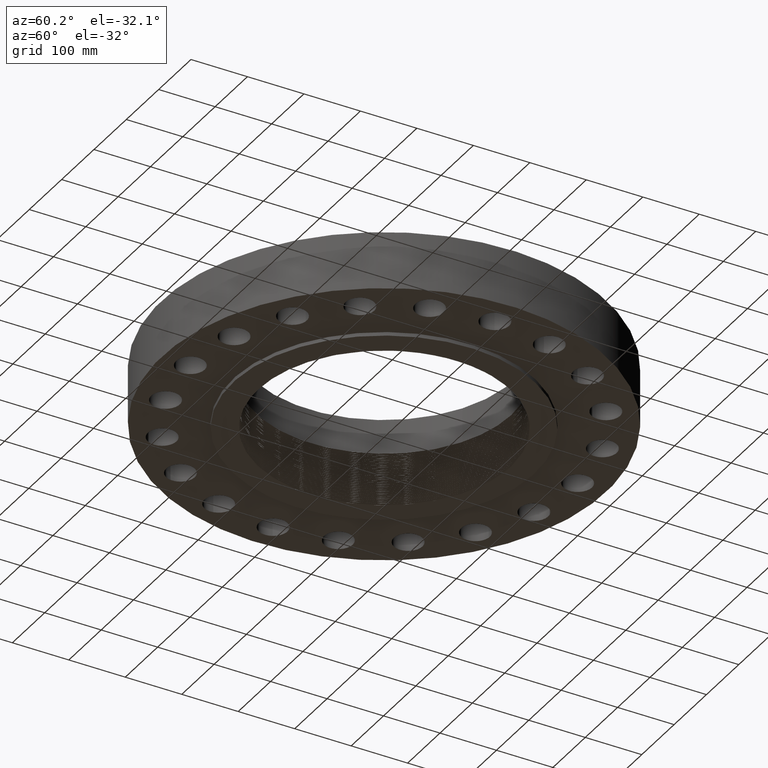
[diagram: clean part render]
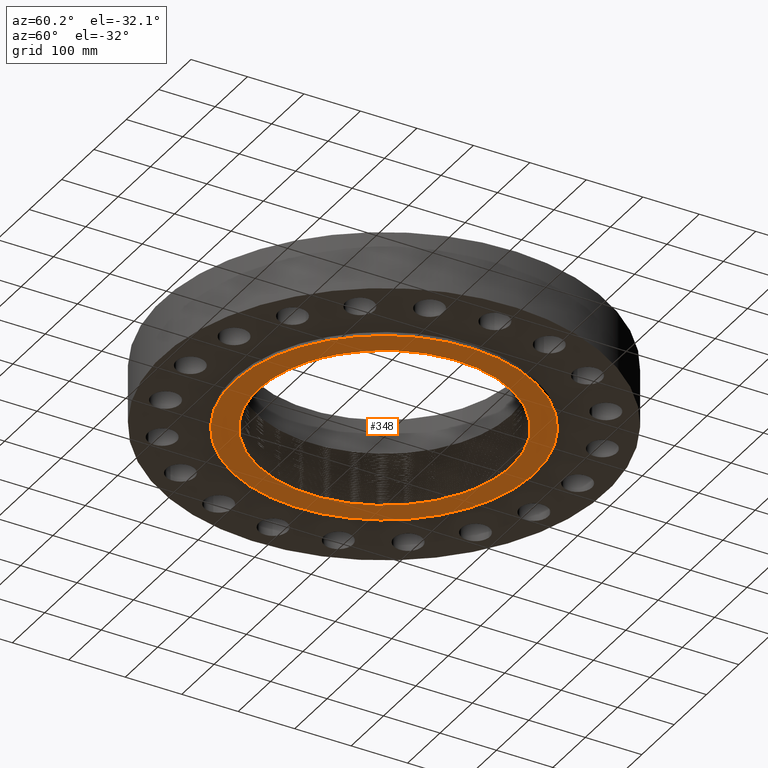
[diagram: same view with one face highlighted and labeled with its STEP entity id]
A machine part, auxiliary view. The second image highlights one B-rep face of the part: STEP entity #348.
In plain terms, the highlighted planar face has unit normal (0, 0, -1).
Its self-contained STEP definition (entity closure, byte-faithful):
#195=AXIS2_PLACEMENT_3D('Plane Axis2P3D',#192,#193,#194) ;
#199=AXIS2_PLACEMENT_3D('Circle Axis2P3D',#197,#198,$) ;
#208=AXIS2_PLACEMENT_3D('Circle Axis2P3D',#206,#207,$) ;
#336=AXIS2_PLACEMENT_3D('Circle Axis2P3D',#334,#335,$) ;
#192=CARTESIAN_POINT('Axis2P3D Location',(0.,0.,-0.250000000001)) ;
#197=CARTESIAN_POINT('Axis2P3D Location',(0.,0.,-0.250000000001)) ;
#201=CARTESIAN_POINT('Vertex',(5.03396815536,9.21461689989,-0.250000000001)) ;
#203=CARTESIAN_POINT('Vertex',(-5.03396815536,-9.21461689989,-0.250000000001)) ;
#206=CARTESIAN_POINT('Axis2P3D Location',(0.,0.,-0.250000000001)) ;
#216=CARTESIAN_POINT('Control Point',(-0.299141003342,-8.76648708422,-0.250000000001)) ;
#217=CARTESIAN_POINT('Control Point',(-0.239342016527,-8.76873469269,-0.250000000001)) ;
#218=CARTESIAN_POINT('Control Point',(-0.179522728011,-8.77047242098,-0.250000000001)) ;
#219=CARTESIAN_POINT('Control Point',(-0.119689010443,-8.77170002375,-0.250000000001)) ;
#220=CARTESIAN_POINT('Control Point',(-0.0598467491431,-8.77241735624,-0.250000000001)) ;
#221=CARTESIAN_POINT('Control Point',(-1.84027412339E-006,-8.77262437458,-0.250000000001)) ;
#222=CARTESIAN_POINT('Vertex',(-0.299141007142,-8.76648707537,-0.250000000001)) ;
#224=CARTESIAN_POINT('Vertex',(-1.84027411206E-006,-8.77262437458,-0.250000000001)) ;
#228=CARTESIAN_POINT('Control Point',(4.21309285032,-7.71201796803,-0.250000000001)) ;
#229=CARTESIAN_POINT('Control Point',(3.74010275886,-7.9682968095,-0.250000000001)) ;
#230=CARTESIAN_POINT('Control Point',(3.24755964161,-8.18835049136,-0.250000000001)) ;
#231=CARTESIAN_POINT('Control Point',(2.73917166828,-8.37017530585,-0.250000000001)) ;
#232=CARTESIAN_POINT('Control Point',(1.88971644834,-8.6023317358,-0.250000000001)) ;
#233=CARTESIAN_POINT('Control Point',(1.01967886539,-8.72668532817,-0.250000000001)) ;
#234=CARTESIAN_POINT('Control Point',(0.680416573941,-8.75848933772,-0.250000000001)) ;
#235=CARTESIAN_POINT('Control Point',(0.34016903856,-8.77380110982,-0.250000000001)) ;
#236=CARTESIAN_POINT('Control Point',(-1.84027411192E-006,-8.77262437458,-0.250000000001)) ;
#237=CARTESIAN_POINT('Vertex',(4.21309285032,-7.71201796803,-0.250000000001)) ;
#241=CARTESIAN_POINT('Control Point',(4.76407524454E-008,8.86795550163,-0.250000000001)) ;
#242=CARTESIAN_POINT('Control Point',(0.540466175443,8.86610610324,-0.250000000001)) ;
#243=CARTESIAN_POINT('Control Point',(1.08072383891,8.82308241737,-0.250000000001)) ;
#244=CARTESIAN_POINT('Control Point',(1.61652723362,8.73891322007,-0.250000000001)) ;
#245=CARTESIAN_POINT('Control Point',(2.67106048427,8.48960540818,-0.250000000001)) ;
#246=CARTESIAN_POINT('Control Point',(3.67510785887,8.0835728522,-0.250000000001)) ;
#247=CARTESIAN_POINT('Control Point',(4.16064184084,7.84260627466,-0.250000000001)) ;
#248=CARTESIAN_POINT('Control Point',(5.09109186165,7.2886032356,-0.250000000001)) ;
#249=CARTESIAN_POINT('Control Point',(5.92651206819,6.60017972317,-0.250000000001)) ;
#250=CARTESIAN_POINT('Control Point',(6.3171202802,6.22471507173,-0.250000000001)) ;
#251=CARTESIAN_POINT('Control Point',(7.03782235542,5.41735414017,-0.250000000001)) ;
#252=CARTESIAN_POINT('Control Point',(7.62765358531,4.51009444622,-0.250000000001)) ;
#253=CARTESIAN_POINT('Control Point',(7.88727835789,4.03487242725,-0.250000000001)) ;
#254=CARTESIAN_POINT('Control Point',(8.25249072209,3.22475379179,-0.250000000001)) ;
#255=CARTESIAN_POINT('Control Point',(8.51320918216,2.37680110254,-0.250000000001)) ;
#256=CARTESIAN_POINT('Control Point',(8.59883126157,2.04032451068,-0.250000000001)) ;
#257=CARTESIAN_POINT('Control Point',(8.73675634762,1.36010589007,-0.250000000001)) ;
#258=CARTESIAN_POINT('Control Point',(8.80738375941,0.669747710568,-0.250000000001)) ;
#259=CARTESIAN_POINT('Control Point',(8.82570400435,0.323159761938,-0.250000000001)) ;
#260=CARTESIAN_POINT('Control Point',(8.82896294227,-0.563404828265,-0.250000000001)) ;
#261=CARTESIAN_POINT('Control Point',(8.72123865271,-1.44462231373,-0.250000000001)) ;
#262=CARTESIAN_POINT('Control Point',(8.61474228283,-1.97488737563,-0.250000000001)) ;
#263=CARTESIAN_POINT('Control Point',(8.32160488469,-3.01485760657,-0.250000000001)) ;
#264=CARTESIAN_POINT('Control Point',(7.87399592839,-3.99788355038,-0.250000000001)) ;
#265=CARTESIAN_POINT('Control Point',(7.61299363444,-4.4712877074,-0.250000000001)) ;
#266=CARTESIAN_POINT('Control Point',(7.0207912595,-5.3742822104,-0.250000000001)) ;
#267=CARTESIAN_POINT('Control Point',(6.29828782042,-6.17662716684,-0.250000000001)) ;
#268=CARTESIAN_POINT('Control Point',(5.90705046044,-6.54929027469,-0.250000000001)) ;
#269=CARTESIAN_POINT('Control Point',(5.33649870694,-7.014873902,-0.250000000001)) ;
#270=CARTESIAN_POINT('Control Point',(4.72221117087,-7.41751165874,-0.250000000001)) ;
#271=CARTESIAN_POINT('Control Point',(4.55522161675,-7.5204259757,-0.250000000001)) ;
#272=CARTESIAN_POINT('Control Point',(4.3854552575,-7.61862734771,-0.250000000001)) ;
#273=CARTESIAN_POINT('Control Point',(4.21309285032,-7.71201796803,-0.250000000001)) ;
#274=CARTESIAN_POINT('Vertex',(4.76407356609E-008,8.86795550163,-0.250000000001)) ;
#278=CARTESIAN_POINT('Control Point',(4.76407360106E-008,8.86795550163,-0.250000000001)) ;
#279=CARTESIAN_POINT('Control Point',(-0.139233845961,8.86843194029,-0.250000000001)) ;
#280=CARTESIAN_POINT('Control Point',(-0.2784821725,8.86617576893,-0.250000000001)) ;
#281=CARTESIAN_POINT('Control Point',(-0.417673234038,8.86118659042,-0.250000000001)) ;
#282=CARTESIAN_POINT('Control Point',(-0.556735394651,8.85346683947,-0.250000000001)) ;
#283=CARTESIAN_POINT('Control Point',(-0.695597264665,8.843021759,-0.250000000001)) ;
#284=CARTESIAN_POINT('Vertex',(-0.695597264665,8.843021759,-0.250000000001)) ;
#288=CARTESIAN_POINT('Control Point',(-0.695597264665,8.843021759,-0.250000000001)) ;
#289=CARTESIAN_POINT('Control Point',(-1.23424022252,8.79860188945,-0.250000000001)) ;
#290=CARTESIAN_POINT('Control Point',(-1.76942356409,8.71316350331,-0.250000000001)) ;
#291=CARTESIAN_POINT('Control Point',(-2.29698396545,8.58705576197,-0.250000000001)) ;
#292=CARTESIAN_POINT('Control Point',(-3.01036557485,8.3577748062,-0.250000000001)) ;
#293=CARTESIAN_POINT('Control Point',(-3.69388890994,8.05563994687,-0.250000000001)) ;
#294=CARTESIAN_POINT('Control Point',(-3.8806779665,7.96646745415,-0.250000000001)) ;
#295=CARTESIAN_POINT('Control Point',(-4.06474675343,7.87189850694,-0.250000000001)) ;
#296=CARTESIAN_POINT('Control Point',(-4.24588913261,7.77204738895,-0.250000000001)) ;
#297=CARTESIAN_POINT('Vertex',(-4.24588913261,7.77204738895,-0.250000000001)) ;
#301=CARTESIAN_POINT('Control Point',(-4.24588913261,7.77204738895,-0.250000000001)) ;
#302=CARTESIAN_POINT('Control Point',(-4.71887756208,7.51132196589,-0.250000000001)) ;
#303=CARTESIAN_POINT('Control Point',(-5.171921254,7.21457847416,-0.250000000001)) ;
#304=CARTESIAN_POINT('Control Point',(-5.60132403298,6.88386675655,-0.250000000001)) ;
#305=CARTESIAN_POINT('Control Point',(-6.40626236225,6.15962844555,-0.250000000001)) ;
#306=CARTESIAN_POINT('Control Point',(-7.0917489016,5.32207276003,-0.250000000001)) ;
#307=CARTESIAN_POINT('Control Point',(-7.40180274342,4.87793070899,-0.250000000001)) ;
#308=CARTESIAN_POINT('Control Point',(-7.95163489039,3.94598098425,-0.250000000001)) ;
#309=CARTESIAN_POINT('Control Point',(-8.35358280643,2.9416874482,-0.250000000001)) ;
#310=CARTESIAN_POINT('Control Point',(-8.51575739232,2.42518328832,-0.250000000001)) ;
#311=CARTESIAN_POINT('Control Point',(-8.75120564114,1.40930405794,-0.250000000001)) ;
#312=CARTESIAN_POINT('Control Point',(-8.83527517512,0.370442745888,-0.250000000001)) ;
#313=CARTESIAN_POINT('Control Point',(-8.84015341367,-0.131704222388,-0.250000000001)) ;
#314=CARTESIAN_POINT('Control Point',(-8.79283761404,-0.902092821698,-0.250000000001)) ;
#315=CARTESIAN_POINT('Control Point',(-8.66225113152,-1.66125800495,-0.250000000001)) ;
#316=CARTESIAN_POINT('Control Point',(-8.60641827563,-1.92505732618,-0.250000000001)) ;
#317=CARTESIAN_POINT('Control Point',(-8.40884071309,-2.70932358522,-0.250000000001)) ;
#318=CARTESIAN_POINT('Control Point',(-8.12245247415,-3.46724195554,-0.250000000001)) ;
#319=CARTESIAN_POINT('Control Point',(-7.89323613518,-3.95681699487,-0.250000000001)) ;
#320=CARTESIAN_POINT('Control Point',(-7.36180265186,-4.897021491,-0.250000000001)) ;
#321=CARTESIAN_POINT('Control Point',(-6.69394150833,-5.74507148243,-0.250000000001)) ;
#322=CARTESIAN_POINT('Control Point',(-6.32815861494,-6.1426927284,-0.250000000001)) ;
#323=CARTESIAN_POINT('Control Point',(-5.53881313342,-6.87872440139,-0.250000000001)) ;
#324=CARTESIAN_POINT('Control Point',(-4.64693435021,-7.48596718354,-0.250000000001)) ;
#325=CARTESIAN_POINT('Control Point',(-4.17862280972,-7.75479120449,-0.250000000001)) ;
#326=CARTESIAN_POINT('Control Point',(-3.28935669786,-8.17824269181,-0.250000000001)) ;
#327=CARTESIAN_POINT('Control Point',(-2.35073186031,-8.47355971545,-0.250000000001)) ;
#328=CARTESIAN_POINT('Control Point',(-1.91825662742,-8.58006844687,-0.250000000001)) ;
#329=CARTESIAN_POINT('Control Point',(-1.48020304411,-8.65892212247,-0.250000000001)) ;
#330=CARTESIAN_POINT('Control Point',(-1.0389438575,-8.70984373258,-0.250000000001)) ;
#331=CARTESIAN_POINT('Vertex',(-1.03894388885,-8.70984365994,-0.250000000003)) ;
#334=CARTESIAN_POINT('Axis2P3D Location',(0.,0.,-0.250000000001)) ;
#193=DIRECTION('Axis2P3D Direction',(0.,0.,-0.0393700787402)) ;
#194=DIRECTION('Axis2P3D XDirection',(0.0393700787402,0.,0.)) ;
#198=DIRECTION('Axis2P3D Direction',(0.,0.,-0.0393700787402)) ;
#207=DIRECTION('Axis2P3D Direction',(0.,0.,-0.0393700787402)) ;
#335=DIRECTION('Axis2P3D Direction',(0.,0.,-0.0393700787402)) ;
#212=ORIENTED_EDGE('',*,*,#205,.T.) ;
#213=ORIENTED_EDGE('',*,*,#210,.T.) ;
#340=ORIENTED_EDGE('',*,*,#226,.T.) ;
#341=ORIENTED_EDGE('',*,*,#239,.F.) ;
#342=ORIENTED_EDGE('',*,*,#276,.F.) ;
#343=ORIENTED_EDGE('',*,*,#286,.T.) ;
#344=ORIENTED_EDGE('',*,*,#299,.T.) ;
#345=ORIENTED_EDGE('',*,*,#333,.T.) ;
#346=ORIENTED_EDGE('',*,*,#338,.F.) ;
#347=FACE_BOUND('',#339,.T.) ;
#348=ADVANCED_FACE('PartBody',(#214,#347),#196,.T.) ;
#215=B_SPLINE_CURVE_WITH_KNOTS('',5,(#216,#217,#218,#219,#220,#221),.UNSPECIFIED.,.F.,.U.,(6,6),(13.539985239,24.3166692503),.UNSPECIFIED.) ;
#227=B_SPLINE_CURVE_WITH_KNOTS('',5,(#228,#229,#230,#231,#232,#233,#234,#235,#236),.UNSPECIFIED.,.F.,.U.,(6,3,6),(0.,96.7908427988,158.047750701),.UNSPECIFIED.) ;
#240=B_SPLINE_CURVE_WITH_KNOTS('',5,(#241,#242,#243,#244,#245,#246,#247,#248,#249,#250,#251,#252,#253,#254,#255,#256,#257,#258,#259,#260,#261,#262,#263,#264,#265,#266,#267,#268,#269,#270,#271,#272,#273),.UNSPECIFIED.,.F.,.U.,(6,3,3,3,3,3,3,3,3,3,6),(0.,96.8116585563,193.664602035,290.54116261,387.384884806,449.618666806,511.845345214,608.662214631,705.495441035,802.308243328,837.579812354),.UNSPECIFIED.) ;
#277=B_SPLINE_CURVE_WITH_KNOTS('',5,(#278,#279,#280,#281,#282,#283),.UNSPECIFIED.,.F.,.U.,(6,6),(0.,24.9404420988),.UNSPECIFIED.) ;
#287=B_SPLINE_CURVE_WITH_KNOTS('',5,(#288,#289,#290,#291,#292,#293,#294,#295,#296),.UNSPECIFIED.,.F.,.U.,(6,3,6),(0.,96.7985487543,133.873934014),.UNSPECIFIED.) ;
#300=B_SPLINE_CURVE_WITH_KNOTS('',5,(#301,#302,#303,#304,#305,#306,#307,#308,#309,#310,#311,#312,#313,#314,#315,#316,#317,#318,#319,#320,#321,#322,#323,#324,#325,#326,#327,#328,#329,#330),.UNSPECIFIED.,.F.,.U.,(6,3,3,3,3,3,3,3,3,6),(0.,96.8090864385,193.645722633,290.485784918,380.386227101,428.790789286,525.627466099,622.50861286,719.388201046,799.405192817),.UNSPECIFIED.) ;
#200=CIRCLE('generated circle',#199,10.5) ;
#209=CIRCLE('generated circle',#208,10.5) ;
#337=CIRCLE('generated circle',#336,8.77158942181) ;
#205=EDGE_CURVE('',#202,#204,#200,.T.) ;
#210=EDGE_CURVE('',#204,#202,#209,.T.) ;
#226=EDGE_CURVE('',#223,#225,#215,.T.) ;
#239=EDGE_CURVE('',#238,#225,#227,.T.) ;
#276=EDGE_CURVE('',#275,#238,#240,.T.) ;
#286=EDGE_CURVE('',#275,#285,#277,.T.) ;
#299=EDGE_CURVE('',#285,#298,#287,.T.) ;
#333=EDGE_CURVE('',#298,#332,#300,.T.) ;
#338=EDGE_CURVE('',#223,#332,#337,.T.) ;
#211=EDGE_LOOP('',(#212,#213)) ;
#339=EDGE_LOOP('',(#340,#341,#342,#343,#344,#345,#346)) ;
#214=FACE_OUTER_BOUND('',#211,.T.) ;
#196=PLANE('',#195) ;
#202=VERTEX_POINT('',#201) ;
#204=VERTEX_POINT('',#203) ;
#223=VERTEX_POINT('',#222) ;
#225=VERTEX_POINT('',#224) ;
#238=VERTEX_POINT('',#237) ;
#275=VERTEX_POINT('',#274) ;
#285=VERTEX_POINT('',#284) ;
#298=VERTEX_POINT('',#297) ;
#332=VERTEX_POINT('',#331) ;